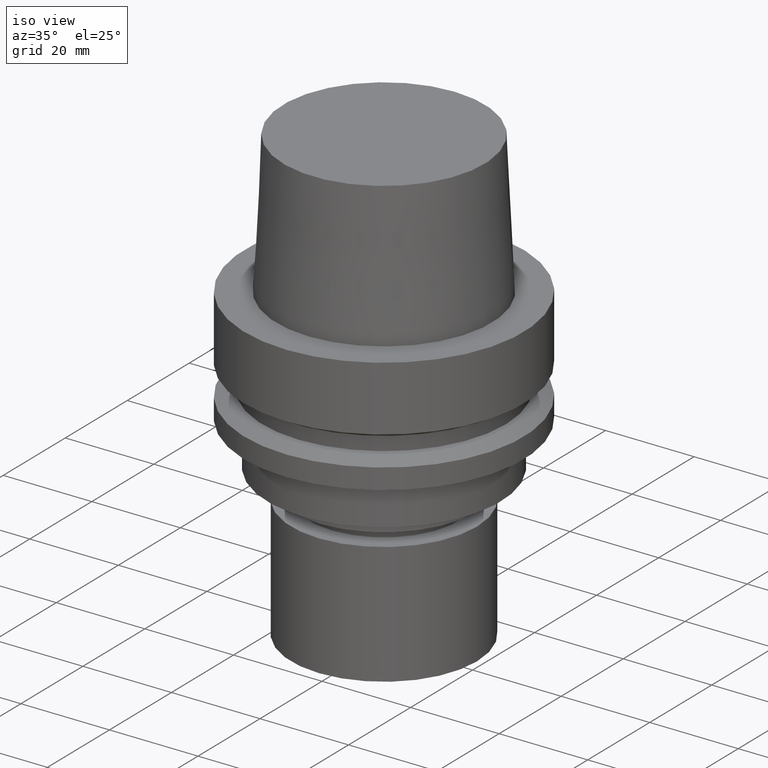
[diagram: clean part render]
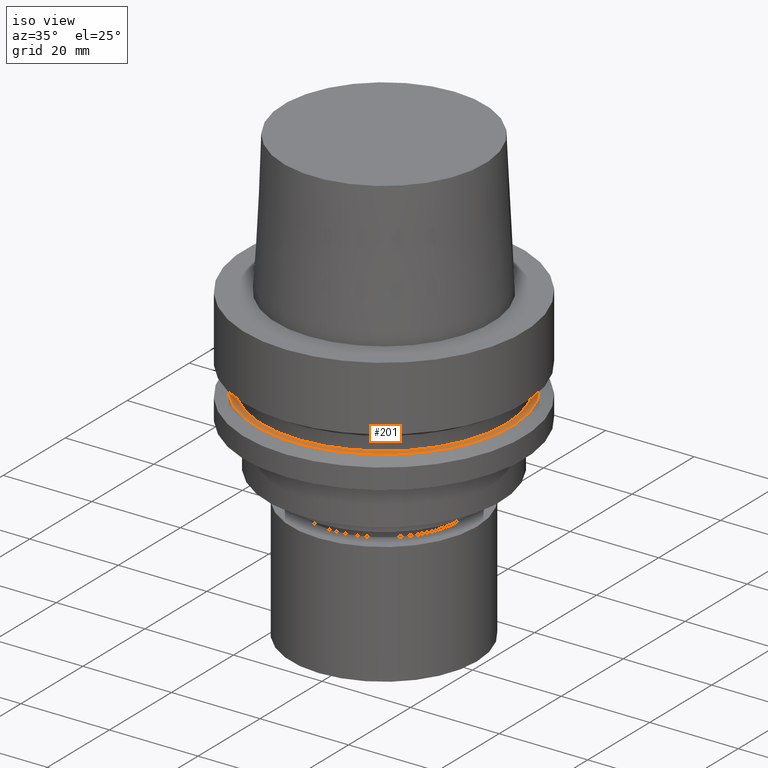
[diagram: same view with one face highlighted and labeled with its STEP entity id]
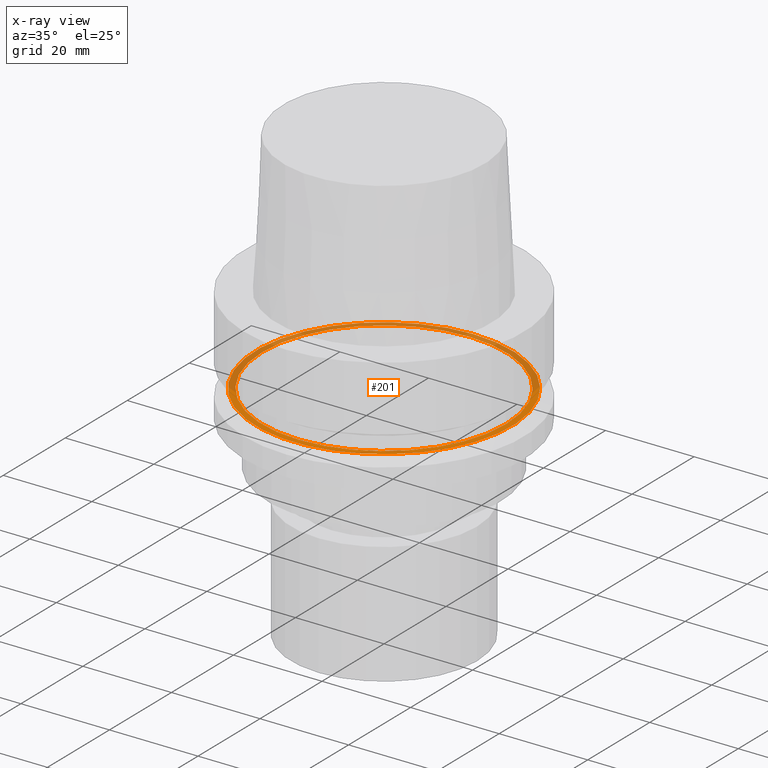
[diagram: x-ray of the same camera — body ghosted, the highlighted face saturated]
A machine part, iso view. The second image highlights one B-rep face of the part: STEP entity #201.
The next image is the same camera in x-ray: the body ghosted, the highlighted face saturated — about 51% of this face is hidden behind the body in this view.
In plain terms, the highlighted planar face has unit normal (-0, -0, 1).
Its self-contained STEP definition (entity closure, byte-faithful):
#81=EDGE_CURVE('Unnamed[1]',#222,#222,#223,.T.);
#152=EDGE_CURVE('Unnamed[1]',#333,#333,#334,.T.);
#201=ADVANCED_FACE('Unnamed[1]',(#406,#407),#408,.T.);
#222=VERTEX_POINT('',#422);
#223=CIRCLE('',#423,27.4999999999989);
#333=VERTEX_POINT('',#561);
#334=CIRCLE('',#562,28.8975952641919);
#406=FACE_BOUND('',#651,.T.);
#407=FACE_OUTER_BOUND('',#652,.T.);
#408=PLANE('',#653);
#422=CARTESIAN_POINT('',(1.21699275665276E-015,27.4999999999989,-19.8750000000013));
#423=AXIS2_PLACEMENT_3D('',#655,#656,#657);
#561=CARTESIAN_POINT('',(1.21699275665268E-015,28.8975952641919,-19.875));
#562=AXIS2_PLACEMENT_3D('',#776,#777,#778);
#651=EDGE_LOOP('',(#858));
#652=EDGE_LOOP('',(#859));
#653=AXIS2_PLACEMENT_3D('',#860,#861,#862);
#655=CARTESIAN_POINT('',(1.21699275665276E-015,2.43398551330552E-015,-19.8750000000013));
#656=DIRECTION('',(-6.12323399573677E-017,-1.22464679914735E-016,1.0));
#657=DIRECTION('',(-1.23259516440783E-032,1.0,1.22464679914735E-016));
#776=CARTESIAN_POINT('',(1.21699275665268E-015,2.43398551330536E-015,-19.875));
#777=DIRECTION('',(-6.12323399573677E-017,-1.22464679914735E-016,1.0));
#778=DIRECTION('',(-1.23259516440783E-032,1.0,1.22464679914735E-016));
#858=ORIENTED_EDGE('',*,*,#81,.F.);
#859=ORIENTED_EDGE('',*,*,#152,.T.);
#860=CARTESIAN_POINT('',(1.21699275665272E-015,28.1987976320954,-19.8750000000006));
#861=DIRECTION('',(-6.12323399573677E-017,-9.58463617675421E-013,1.0));
#862=DIRECTION('',(-5.86937972270006E-029,1.0,9.58463617675421E-013));